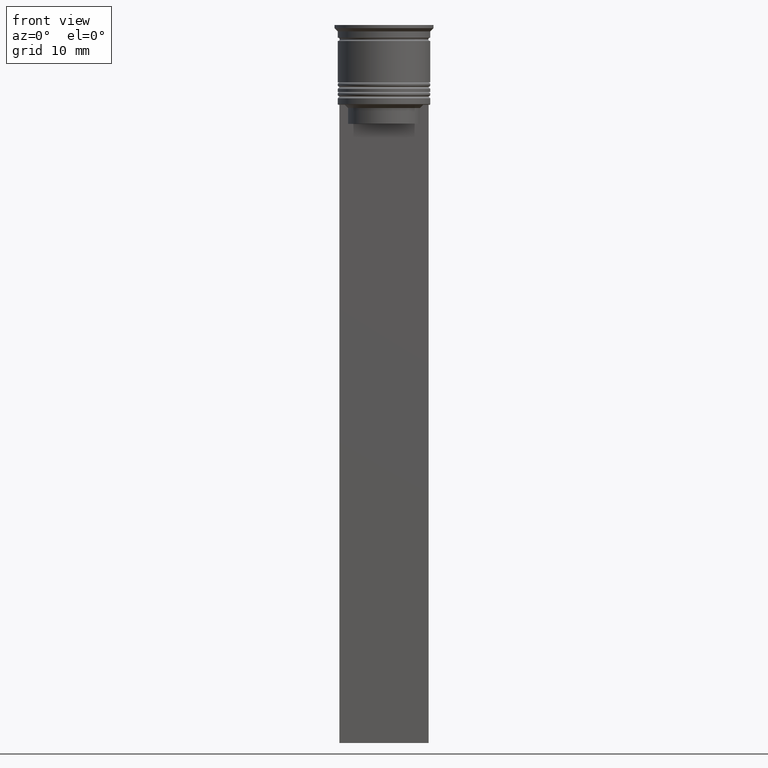
[diagram: clean part render]
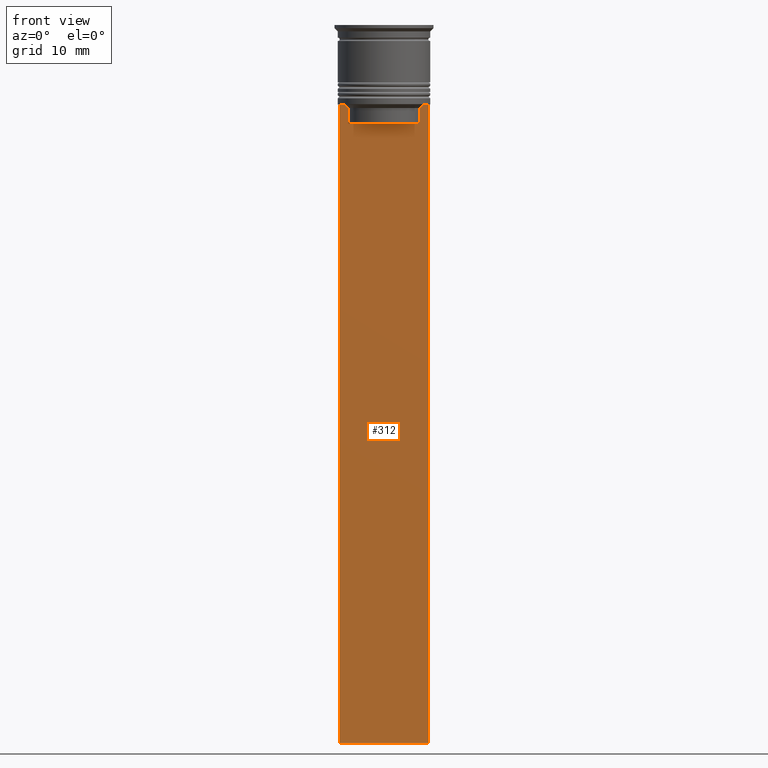
[diagram: same view with one face highlighted and labeled with its STEP entity id]
A machine part, front view. The second image highlights one B-rep face of the part: STEP entity #312.
In plain terms, the highlighted planar face has unit normal (0, -1, -0).
Its self-contained STEP definition (entity closure, byte-faithful):
#36 = VECTOR ( 'NONE', #2037, 1000.000000000000000 ) ;
#84 = DIRECTION ( 'NONE',  ( 0.000000000000000000, 0.000000000000000000, -1.000000000000000000 ) ) ;
#92 = EDGE_CURVE ( 'NONE', #487, #430, #610, .T. ) ;
#93 = CARTESIAN_POINT ( 'NONE',  ( 7.000000000000012434, -0.5000000000000022204, -112.5000000000000000 ) ) ;
#137 = CARTESIAN_POINT ( 'NONE',  ( -5.795128834036803234, -0.5000000000000022204, -12.83336016107156574 ) ) ;
#162 = CARTESIAN_POINT ( 'NONE',  ( -6.999999999999987566, -0.5000000000000022204, 1.535668847618198329 ) ) ;
#237 = CARTESIAN_POINT ( 'NONE',  ( 0.000000000000000000, -0.5000000000000022204, -15.50000000000000000 ) ) ;
#246 = ORIENTED_EDGE ( 'NONE', *, *, #1387, .F. ) ;
#279 = VERTEX_POINT ( 'NONE', #1558 ) ;
#304 = VERTEX_POINT ( 'NONE', #1921 ) ;
#312 = ADVANCED_FACE ( 'NONE', ( #848 ), #620, .T. ) ;
#316 = CARTESIAN_POINT ( 'NONE',  ( -6.129641098791995368, -0.5000000000000022204, -12.50000000000000000 ) ) ;
#344 = CARTESIAN_POINT ( 'NONE',  ( 5.627832620112292794, -0.5000000000000022204, -13.00000000000000000 ) ) ;
#347 = CARTESIAN_POINT ( 'NONE',  ( -6.129641098791995368, -0.5000000000000022204, -12.50000000000000000 ) ) ;
#367 = ORIENTED_EDGE ( 'NONE', *, *, #506, .F. ) ;
#402 = CARTESIAN_POINT ( 'NONE',  ( 7.000000000000012434, -0.5000000000000022204, -12.50000000000000000 ) ) ;
#430 = VERTEX_POINT ( 'NONE', #1338 ) ;
#433 = CARTESIAN_POINT ( 'NONE',  ( -5.627832620112292794, -0.5000000000000022204, -15.50000000000000000 ) ) ;
#468 = CARTESIAN_POINT ( 'NONE',  ( 5.627832620112292794, -0.5000000000000022204, 0.000000000000000000 ) ) ;
#487 = VERTEX_POINT ( 'NONE', #433 ) ;
#506 = EDGE_CURVE ( 'NONE', #868, #1600, #1858, .T. ) ;
#507 = CARTESIAN_POINT ( 'NONE',  ( 5.962396079681182570, -0.5000000000000022204, -12.66669137279835766 ) ) ;
#544 = CARTESIAN_POINT ( 'NONE',  ( -5.962396146966409738, -0.5000000000000022204, -12.66669130573587054 ) ) ;
#557 = LINE ( 'NONE', #402, #2070 ) ;
#563 = DIRECTION ( 'NONE',  ( 1.000000000000000000, 0.000000000000000000, 0.000000000000000000 ) ) ;
#610 = LINE ( 'NONE', #237, #821 ) ;
#620 = PLANE ( 'NONE',  #1770 ) ;
#628 = EDGE_LOOP ( 'NONE', ( #246, #1077, #1294, #367, #1172, #1930, #1145, #1058, #2236, #1626 ) ) ;
#637 = VECTOR ( 'NONE', #2315, 1000.000000000000000 ) ;
#726 = EDGE_CURVE ( 'NONE', #1330, #1600, #1612, .T. ) ;
#770 = CARTESIAN_POINT ( 'NONE',  ( 7.000000000000012434, -0.5000000000000022204, -112.5000000000000000 ) ) ;
#785 = VECTOR ( 'NONE', #1163, 1000.000000000000000 ) ;
#790 = DIRECTION ( 'NONE',  ( -0.000000000000000000, -0.000000000000000000, 1.000000000000000000 ) ) ;
#821 = VECTOR ( 'NONE', #563, 1000.000000000000000 ) ;
#848 = FACE_OUTER_BOUND ( 'NONE', #628, .T. ) ;
#868 = VERTEX_POINT ( 'NONE', #93 ) ;
#984 = DIRECTION ( 'NONE',  ( 1.000000000000000000, 0.000000000000000000, 0.000000000000000000 ) ) ;
#988 = EDGE_CURVE ( 'NONE', #279, #868, #1987, .T. ) ;
#1009 = CARTESIAN_POINT ( 'NONE',  ( 7.000000000000012434, -0.5000000000000022204, -12.50000000000000000 ) ) ;
#1021 = B_SPLINE_CURVE_WITH_KNOTS ( 'NONE', 3,
 ( #1750, #2134, #507, #1407 ),
 .UNSPECIFIED., .F., .F.,
 ( 4, 4 ),
 ( 0.02651134470867370918, 0.02721991123504334531 ),
 .UNSPECIFIED. ) ;
#1058 = ORIENTED_EDGE ( 'NONE', *, *, #1619, .F. ) ;
#1067 = VECTOR ( 'NONE', #790, 1000.000000000000000 ) ;
#1077 = ORIENTED_EDGE ( 'NONE', *, *, #1116, .F. ) ;
#1116 = EDGE_CURVE ( 'NONE', #1330, #2176, #557, .T. ) ;
#1145 = ORIENTED_EDGE ( 'NONE', *, *, #2198, .F. ) ;
#1163 = DIRECTION ( 'NONE',  ( -1.000000000000000000, 0.000000000000000000, 0.000000000000000000 ) ) ;
#1167 = CARTESIAN_POINT ( 'NONE',  ( 7.000000000000012434, -0.5000000000000022204, 1.535668847618198329 ) ) ;
#1172 = ORIENTED_EDGE ( 'NONE', *, *, #988, .F. ) ;
#1211 = VECTOR ( 'NONE', #1433, 1000.000000000000000 ) ;
#1257 = CARTESIAN_POINT ( 'NONE',  ( 6.129641098791995368, -0.5000000000000022204, -12.50000000000000000 ) ) ;
#1294 = ORIENTED_EDGE ( 'NONE', *, *, #726, .T. ) ;
#1321 = LINE ( 'NONE', #1343, #36 ) ;
#1330 = VERTEX_POINT ( 'NONE', #2118 ) ;
#1338 = CARTESIAN_POINT ( 'NONE',  ( 5.627832620112292794, -0.5000000000000022204, -15.50000000000000000 ) ) ;
#1343 = CARTESIAN_POINT ( 'NONE',  ( -5.627832620112292794, -0.5000000000000022204, 0.000000000000000000 ) ) ;
#1345 = LINE ( 'NONE', #468, #1067 ) ;
#1387 = EDGE_CURVE ( 'NONE', #2176, #304, #1527, .T. ) ;
#1407 = CARTESIAN_POINT ( 'NONE',  ( 6.129641098791995368, -0.5000000000000022204, -12.50000000000000000 ) ) ;
#1433 = DIRECTION ( 'NONE',  ( 0.000000000000000000, 0.000000000000000000, -1.000000000000000000 ) ) ;
#1527 = B_SPLINE_CURVE_WITH_KNOTS ( 'NONE', 3,
 ( #347, #544, #137, #1968 ),
 .UNSPECIFIED., .F., .F.,
 ( 4, 4 ),
 ( 0.01045365750109871796, 0.01116204421161398619 ),
 .UNSPECIFIED. ) ;
#1558 = CARTESIAN_POINT ( 'NONE',  ( 7.000000000000012434, -0.5000000000000022204, -12.50000000000000000 ) ) ;
#1600 = VERTEX_POINT ( 'NONE', #1725 ) ;
#1612 = LINE ( 'NONE', #162, #1211 ) ;
#1619 = EDGE_CURVE ( 'NONE', #430, #1847, #1345, .T. ) ;
#1626 = ORIENTED_EDGE ( 'NONE', *, *, #2094, .F. ) ;
#1659 = DIRECTION ( 'NONE',  ( 1.000000000000000000, 0.000000000000000000, 0.000000000000000000 ) ) ;
#1707 = EDGE_CURVE ( 'NONE', #2254, #279, #2078, .T. ) ;
#1712 = DIRECTION ( 'NONE',  ( 0.000000000000000000, -1.000000000000000000, -0.000000000000000000 ) ) ;
#1725 = CARTESIAN_POINT ( 'NONE',  ( -6.999999999999987566, -0.5000000000000022204, -112.5000000000000000 ) ) ;
#1750 = CARTESIAN_POINT ( 'NONE',  ( 5.627832620112292794, -0.5000000000000022204, -13.00000000000000000 ) ) ;
#1770 = AXIS2_PLACEMENT_3D ( 'NONE', #1167, #1712, #84 ) ;
#1794 = CARTESIAN_POINT ( 'NONE',  ( 7.000000000000012434, -0.5000000000000022204, 1.535668847618198329 ) ) ;
#1847 = VERTEX_POINT ( 'NONE', #344 ) ;
#1858 = LINE ( 'NONE', #770, #785 ) ;
#1921 = CARTESIAN_POINT ( 'NONE',  ( -5.627832620112292794, -0.5000000000000022204, -13.00000000000000000 ) ) ;
#1930 = ORIENTED_EDGE ( 'NONE', *, *, #1707, .F. ) ;
#1968 = CARTESIAN_POINT ( 'NONE',  ( -5.627832620112292794, -0.5000000000000022204, -13.00000000000000000 ) ) ;
#1987 = LINE ( 'NONE', #1794, #637 ) ;
#2037 = DIRECTION ( 'NONE',  ( 0.000000000000000000, 0.000000000000000000, -1.000000000000000000 ) ) ;
#2070 = VECTOR ( 'NONE', #1659, 1000.000000000000000 ) ;
#2078 = LINE ( 'NONE', #1009, #2227 ) ;
#2094 = EDGE_CURVE ( 'NONE', #304, #487, #1321, .T. ) ;
#2118 = CARTESIAN_POINT ( 'NONE',  ( -6.999999999999987566, -0.5000000000000022204, -12.50000000000000000 ) ) ;
#2134 = CARTESIAN_POINT ( 'NONE',  ( 5.795128760752288777, -0.5000000000000022204, -12.83336023406855375 ) ) ;
#2176 = VERTEX_POINT ( 'NONE', #316 ) ;
#2198 = EDGE_CURVE ( 'NONE', #1847, #2254, #1021, .T. ) ;
#2227 = VECTOR ( 'NONE', #984, 1000.000000000000000 ) ;
#2236 = ORIENTED_EDGE ( 'NONE', *, *, #92, .F. ) ;
#2254 = VERTEX_POINT ( 'NONE', #1257 ) ;
#2315 = DIRECTION ( 'NONE',  ( 0.000000000000000000, 0.000000000000000000, -1.000000000000000000 ) ) ;